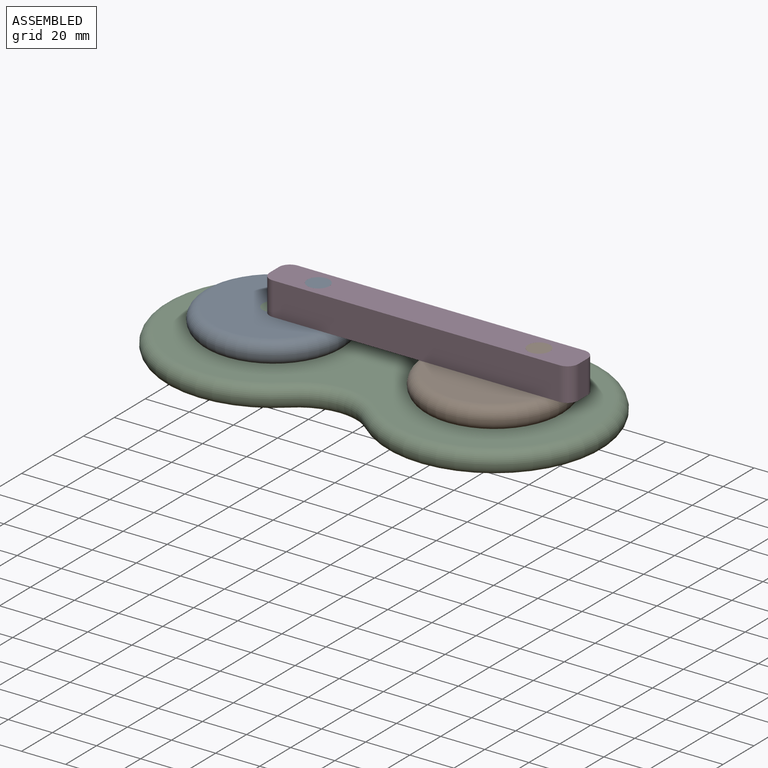
[diagram: assembled view]
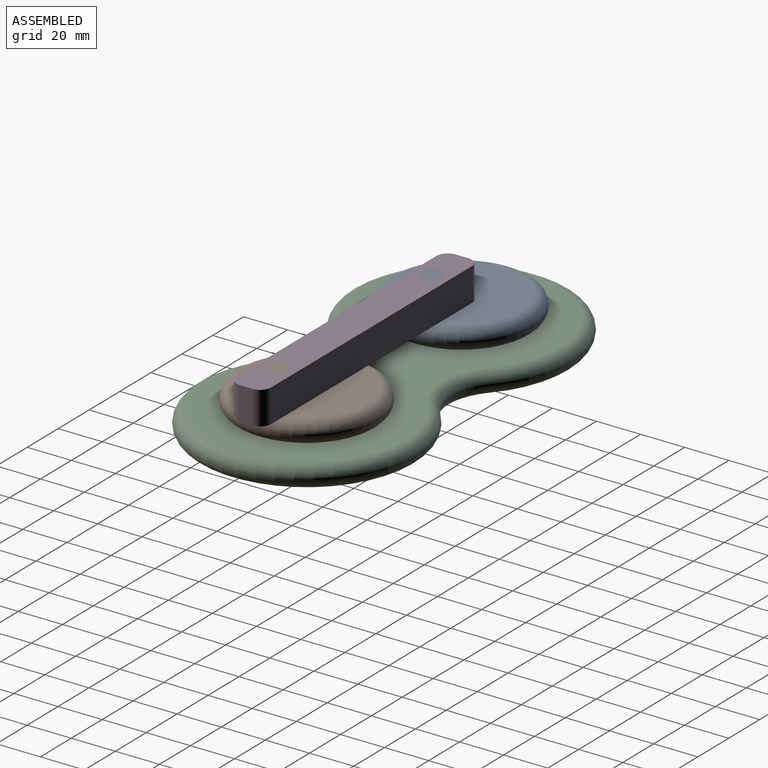
[diagram: assembled view, second angle]
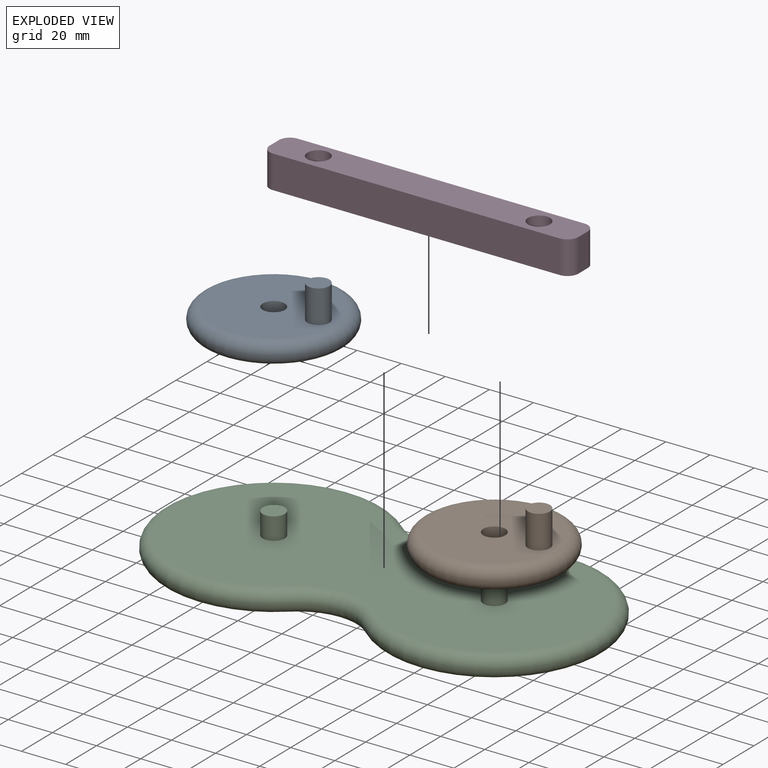
[diagram: exploded view]
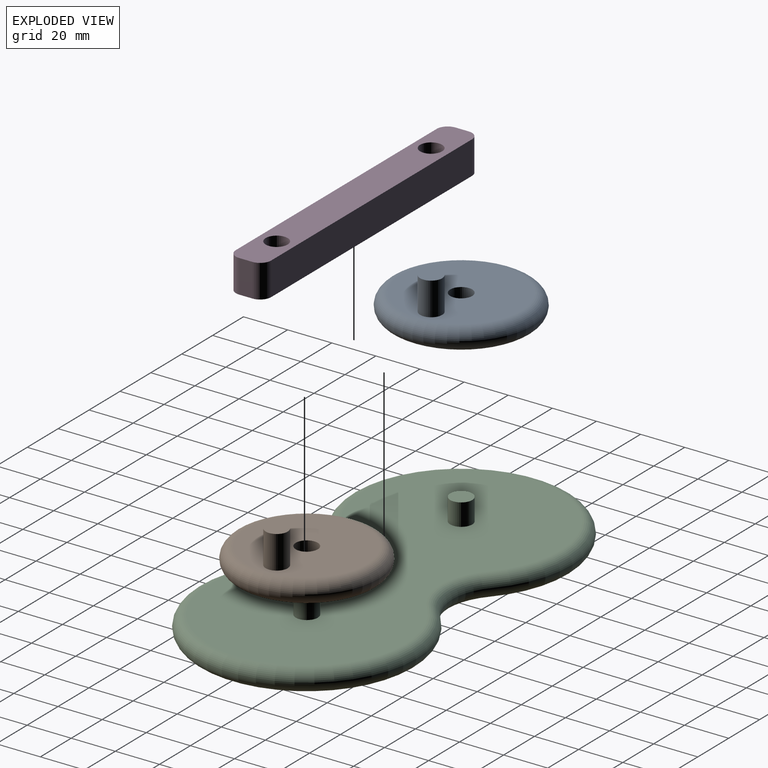
[diagram: exploded view, second angle]
ASSEMBLY  parts=4 mates=4
PART A: 6 faces, bbox 70.4x70.4x25 mm
  f0: cylinder r=5mm len=10mm, axis (0,0,-1), area 314.2mm2, adj f1,f2
  f1: plane 55x55mm, normal (0,0,1), area 2218.7mm2, adj f0,f3,f4
  f2: plane 55x55mm, normal (0,0,-1), area 2297.3mm2, adj f0,f3
  f3: torus R=27.5mm, axis (0,0,1), area 3028.3mm2, adj f1,f2
  f4: cylinder r=5mm len=15mm, axis (0,0,-1), area 471.2mm2, adj f1,f5
  f5: plane 10x10mm, normal (0,0,1), area 78.5mm2, adj f4
PART B: 6 faces, bbox 70.4x70.4x25 mm
  f0: cylinder r=5mm len=10mm, axis (0,0,-1), area 314.2mm2, adj f1,f2
  f1: plane 55x55mm, normal (0,0,1), area 2218.7mm2, adj f0,f3,f4
  f2: plane 55x55mm, normal (0,0,-1), area 2297.3mm2, adj f0,f3
  f3: torus R=27.5mm, axis (0,0,1), area 3028.3mm2, adj f1,f2
  f4: cylinder r=5mm len=15mm, axis (0,0,-1), area 471.2mm2, adj f1,f5
  f5: plane 10x10mm, normal (0,0,1), area 78.5mm2, adj f4
PART C: 10 faces, bbox 208.2x108.2x20 mm
  f0: plane 190x90mm, normal (0,0,1), area 13436.7mm2, adj f2,f3,f4,f5,f6,f8
  f1: plane 190x90mm, normal (0,0,-1), area 13593.8mm2, adj f2,f3,f4,f5
  f2: torus R=30mm, axis (0,0,1), area 614.8mm2, adj f0,f1,f3,f4
  f3: torus R=45mm, axis (0,0,1), area 3482.3mm2, adj f0,f1,f2,f5
  f4: torus R=45mm, axis (0,0,1), area 3482.3mm2, adj f0,f1,f2,f5
  f5: torus R=30mm, axis (0,0,1), area 614.8mm2, adj f0,f1,f3,f4
  f6: cylinder r=5mm len=10mm, axis (0,0,-1), area 314.2mm2, adj f0,f7
  f7: plane 10x10mm, normal (0,0,1), area 78.5mm2, adj f6
  f8: cylinder r=5mm len=10mm, axis (0,0,-1), area 314.2mm2, adj f0,f9
  f9: plane 10x10mm, normal (0,0,1), area 78.5mm2, adj f8
PART D: 12 faces, bbox 140x16x15 mm
  f0: plane 130x15mm, normal (0,1,0), area 1950mm2, adj f6,f7,f8,f9
  f1: plane 15x6mm, normal (-1,0,0), area 90mm2, adj f6,f7,f9,f10
  f2: plane 130x15mm, normal (0,-1,0), area 1950mm2, adj f6,f7,f10,f11
  f3: cylinder r=5mm len=15mm, axis (0,0,-1), area 471.2mm2, adj f6,f7
  f4: plane 15x6mm, normal (1,0,0), area 90mm2, adj f6,f7,f8,f11
  f5: cylinder r=5mm len=15mm, axis (0,0,-1), area 471.2mm2, adj f6,f7
  f6: plane 140x16mm, normal (0,0,1), area 2061.5mm2, adj f0,f1,f2,f3,f4,f5,f8,f9
  f7: plane 140x16mm, normal (0,0,-1), area 2061.5mm2, adj f0,f1,f2,f3,f4,f5,f8,f9
  f8: cylinder r=5mm len=15mm, axis (0,0,-1), area 117.8mm2, adj f0,f4,f6,f7
  f9: cylinder r=5mm len=15mm, axis (0,0,1), area 117.8mm2, adj f0,f1,f6,f7
  f10: cylinder r=5mm len=15mm, axis (0,0,-1), area 117.8mm2, adj f1,f2,f6,f7
  f11: cylinder r=5mm len=15mm, axis (0,0,1), area 117.8mm2, adj f2,f4,f6,f7
PLACE A rot(axis=(0,0,1),91deg) t=(-99.09,77.27,89.59)mm
PLACE B rot(axis=(0,0,1),91deg) t=(2.73,-22.71,89.59)mm
PLACE C rot(axis=(-0.75,0.66,0),0deg) t=(-104.51,48.91,89.59)mm fixed
PLACE D rot(axis=(-0.75,0.66,0),0deg) t=(-84.52,69.27,89.59)mm
MATE revolute D.f5 <-> A.f4  axis (0,0,1) through (-95.73,66.11,124.59)mm
MATE revolute D.f3 <-> B.f4  axis (0,0,-1) through (4.27,66.11,109.59)mm
MATE revolute A.f0 <-> C.f4  axis (0,0,1) through (-115.73,65.75,109.59)mm
MATE revolute B.f0 <-> C.f3  axis (0,0,-1) through (-15.73,65.75,99.59)mm
